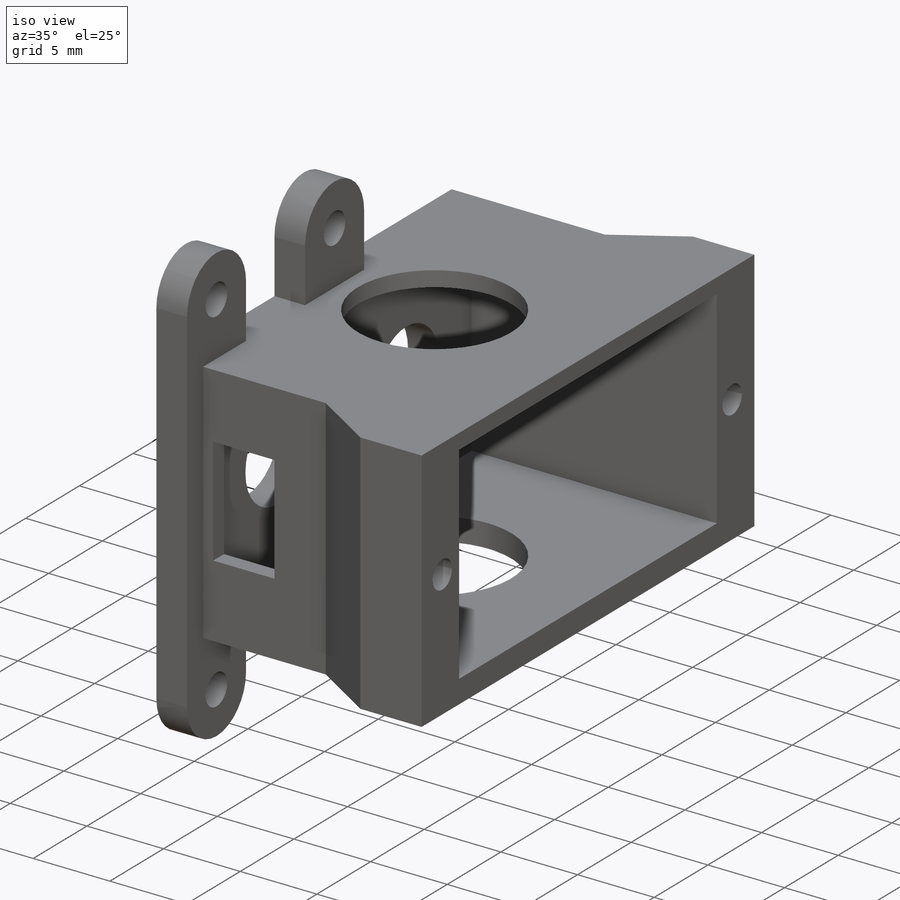
[diagram: iso view]
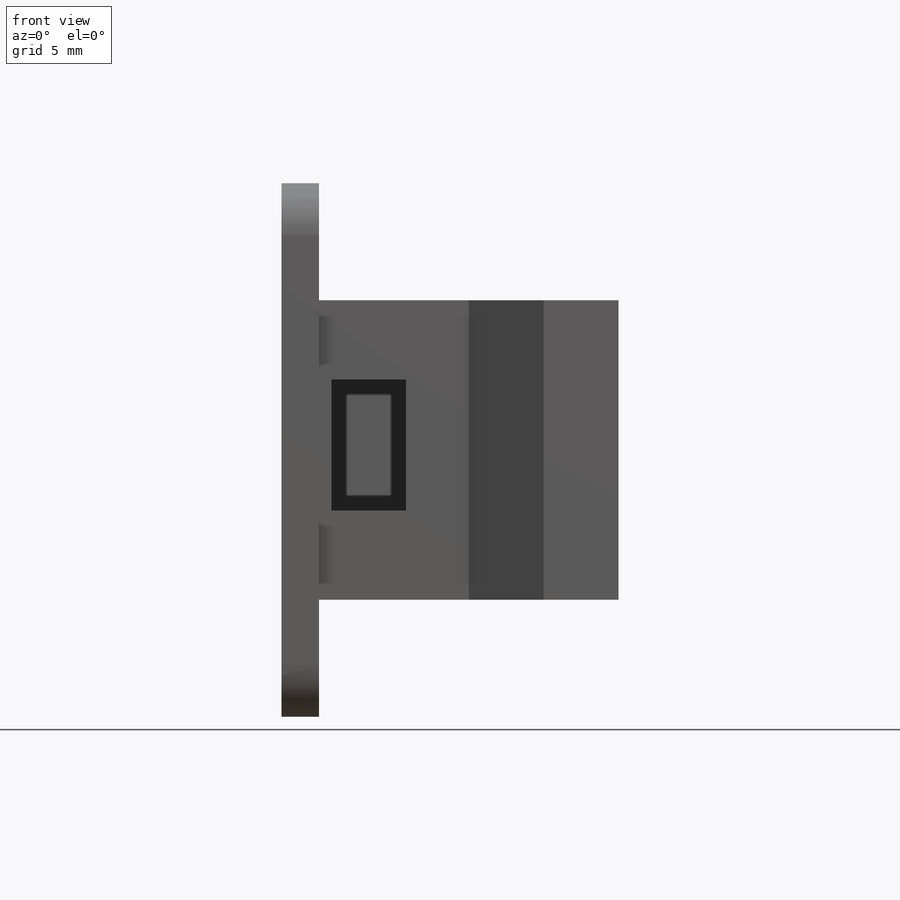
[diagram: front view]
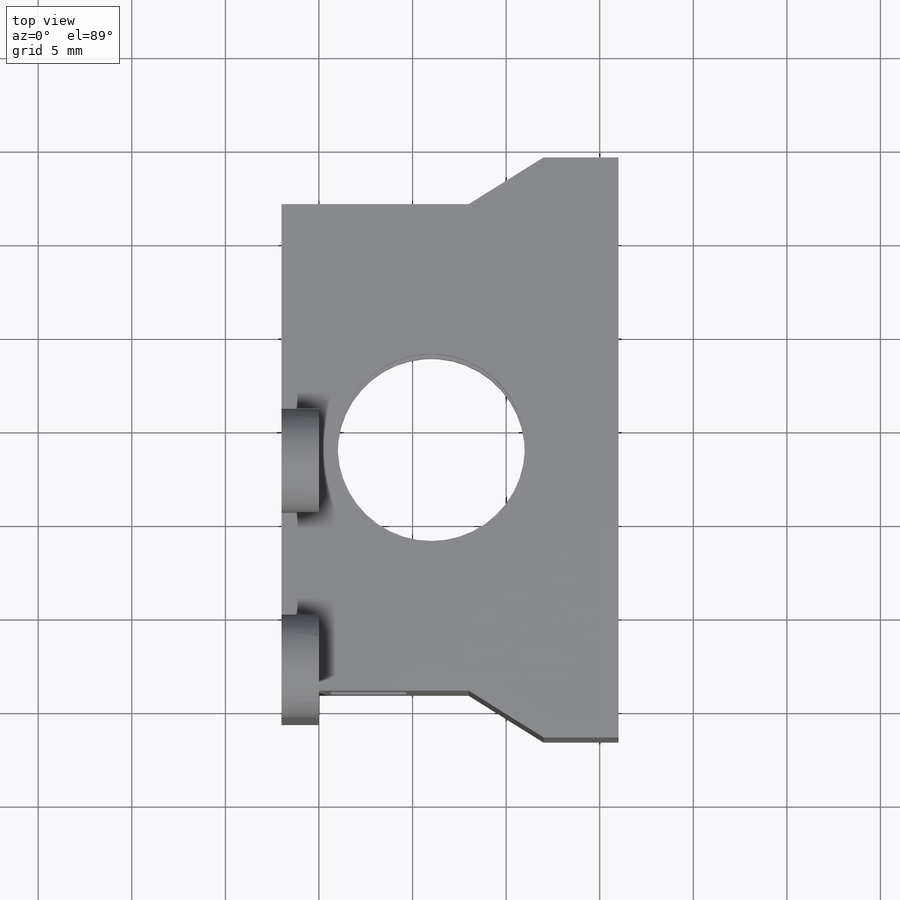
[diagram: top view]
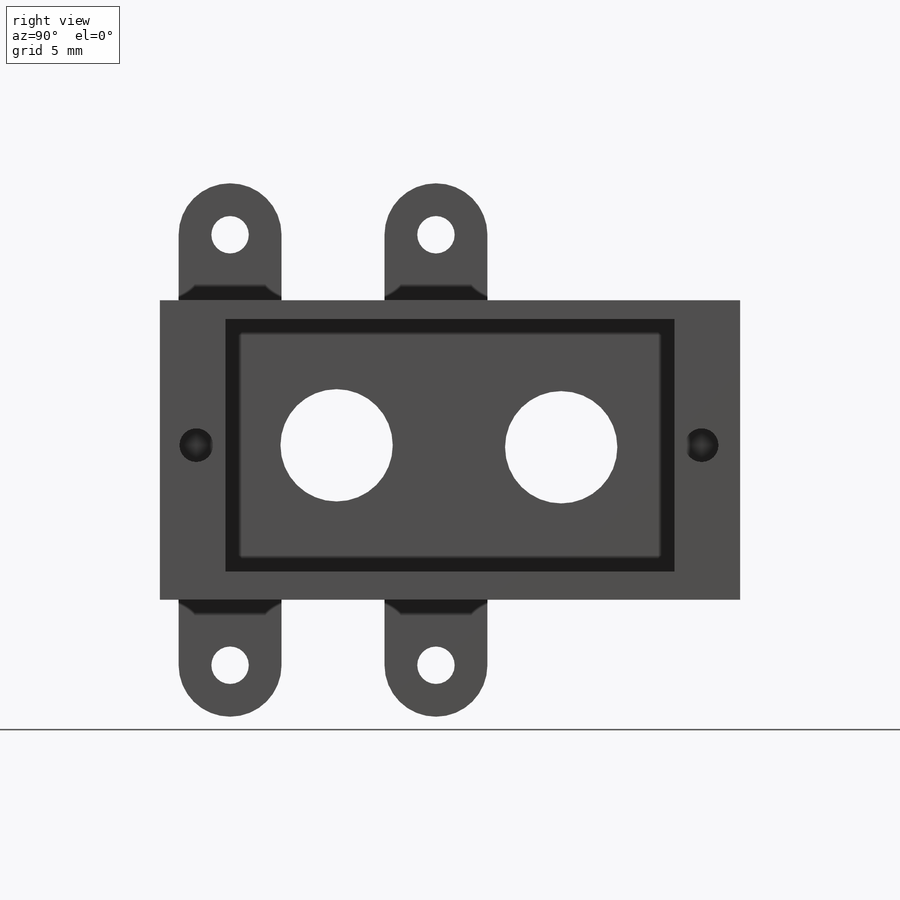
[diagram: right view]
SOLIDWORKS PART (.sldprt)
format: sldprt  version: not decoded by parser v0  size: 872,448 bytes
history: native  units: mm
features: sketch x13, extrude x7, cut_extrude x6, plane x4, material x1, pattern_linear x1 (+10 scaffold rows collapsed)
feature tree (42):
  scaffold x10  (default folders/planes/origin — collapsed)
  material  "uhlíková ocel 7850"
  plane  "Přední rovina"
  plane  "Horní rovina"
  plane  "Pravá rovina"
  sketch  "Skica1"  dims[c1.D1=11.0mm c1.D2=~4.27362mm c2.D2=135.0deg c2.D3=27.0mm c2.D4=2.0mm c2.D5=2.0mm c2.D6=2.0mm c2.D7=14.25mm]
  extrude  "Přidat vysunutím1"  Depth=15mm
  sketch  "Skica8"  dims[D1=26.0mm D2=26.0mm]
  extrude  "Přidat vysunutím2"  [1 undecoded]
  sketch  "Skica10"  dims[D1=24.0mm D2=1.0mm D3=16.0mm]
  cut_extrude  "Odebrat vysunutím7"  Depth=13.5mm
  sketch  "Skica11"  dims[D1=2.5mm]
  extrude  "Přidat vysunutím3"  Depth=4mm
  sketch  "Skica12"  dims[D1=1.8mm D2=27.0mm D3=~1.558645mm]
  cut_extrude  "Odebrat vysunutím8"  Depth=4mm
  sketch  "Skica13"  dims[D1=4.0mm D2=7.0mm D3=11.0mm D4=~5.843146mm]
  cut_extrude  "Odebrat vysunutím9"  Depth=4mm
  sketch  "Skica17"  dims[D1=2.0mm]
  cut_extrude  "Odebrat vysunutím10"  [1 undecoded]
  sketch  "Skica19"
  extrude  "Přidat vysunutím4"  Depth=1mm
  sketch  "Skica20"  dims[c1.D3=2.0mm c1.D1=22.0mm c1.D2=5.5mm c1.D4=3.0mm c2.D1=24.75mm c2.D4=23.0mm c2.D5=22.0mm]
  extrude  "Přidat vysunutím5"  Depth=2mm
  plane  "Rovina1"
  sketch  "Skica21"  dims[D1=10.0mm D2=8.0mm]
  cut_extrude  "Odebrat vysunutím11"  Depth=22mm
  pattern_linear  "LinPole1"  Count1=2 Count2=1 Spacing1=11mm Spacing2=10mm
  sketch  "Skica22"  dims[D1=6.0mm D2=6.0mm]
  cut_extrude  "Odebrat vysunutím12"  Depth=5mm
  sketch  "Skica23"  dims[D1=4.0mm]
  extrude  "Přidat vysunutím6"  [1 undecoded]
  sketch  "Skica24"  dims[D1=0.0mm]
  extrude  "Přidat vysunutím7"  [1 undecoded]
decode coverage: 22 of 27 modeling features carry decoded parameters
note: ~ marks probable driven/reference dimensions
note: 4 parameter values undecoded
summary: no parameter record found for 4 features
note: suppression state not decoded; provenance and decode notes live in map.json
